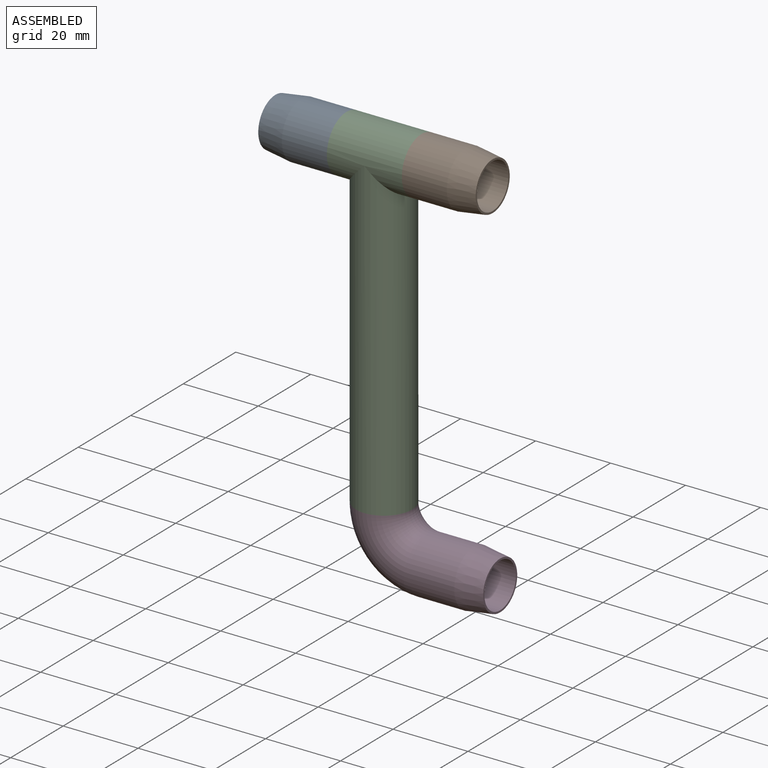
[diagram: assembled view]
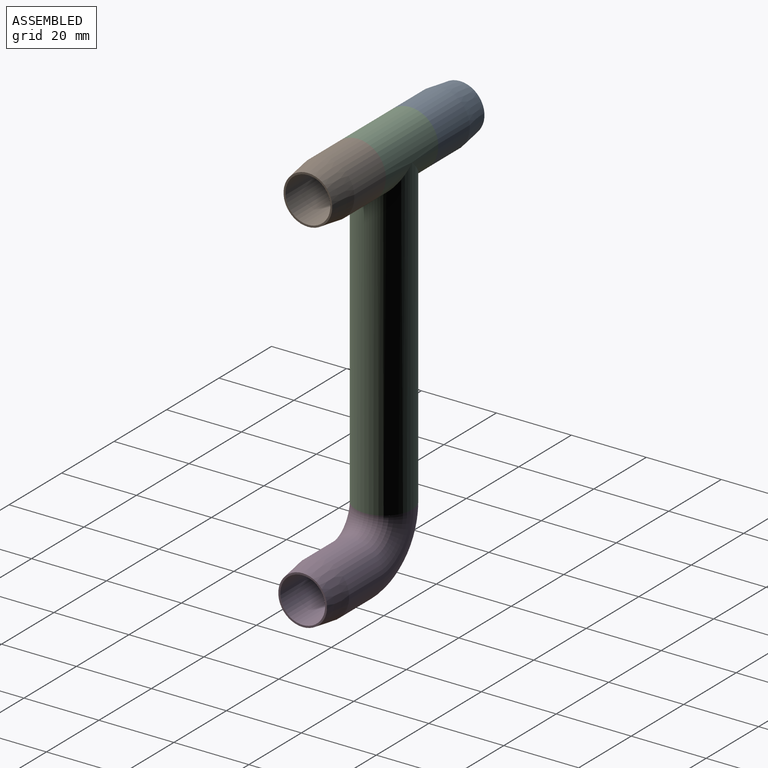
[diagram: assembled view, second angle]
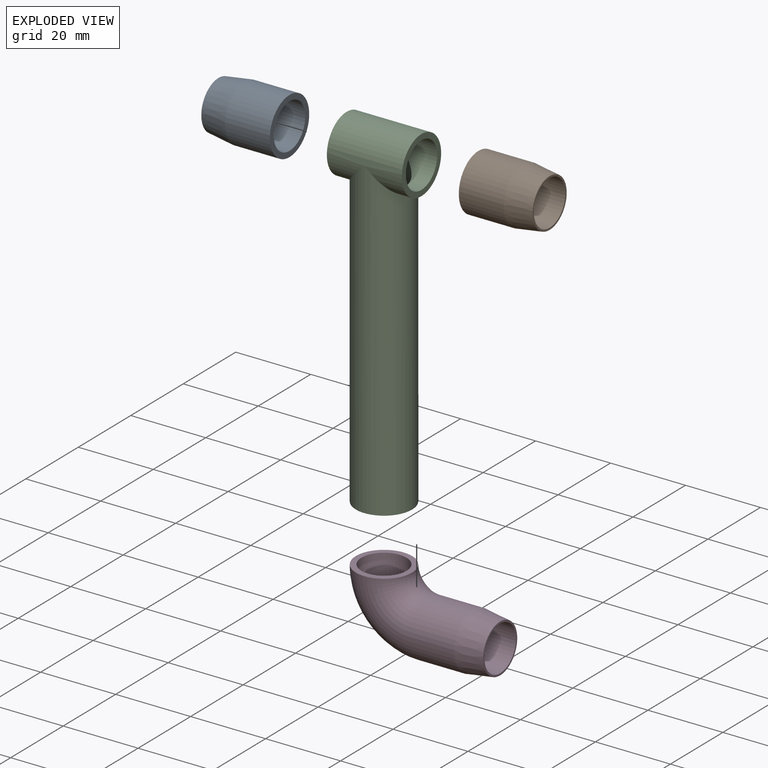
[diagram: exploded view]
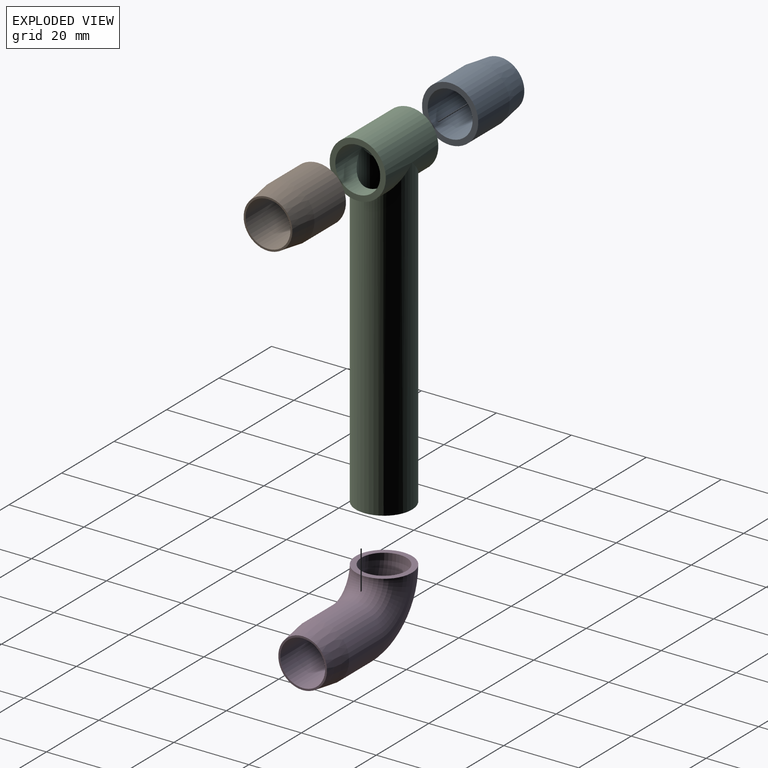
[diagram: exploded view, second angle]
ASSEMBLY  parts=4 mates=3
PART A: 5 faces, bbox 15x15x19 mm
  f0: cylinder r=6mm len=19mm, axis (0,0,-1), area 716.3mm2, adj f1,f4
  f1: plane 15x15mm, normal (0,0,-1), area 63.6mm2, adj f0,f2
  f2: cylinder r=7.5mm len=15mm, axis (0,0,-1), area 565.5mm2, adj f1,f3
  f3: cone r=6.5mm half-angle=8.1deg, axis (0,0,-1), area 311mm2, adj f2,f4
  f4: plane 13x13mm, normal (0,0,1), area 19.6mm2, adj f0,f3
PART B: same geometry as A
PART C: 9 faces, bbox 20x15x91.3 mm
  f0: cylinder r=6mm len=20mm, axis (-1,0,0), area 609.9mm2, adj f2,f3,f5,f7,f8
  f1: cylinder r=7.5mm len=20mm, axis (-1,0,0), area 741.6mm2, adj f2,f3,f4
  f2: plane 15x15mm, normal (1,0,0), area 63.6mm2, adj f0,f1
  f3: plane 15x15mm, normal (-1,0,0), area 63.6mm2, adj f0,f1
  f4: cylinder r=7.5mm len=83.75mm, axis (0,0,1), area 3745.8mm2, adj f1,f6
  f5: cylinder r=6mm len=83.75mm, axis (0,0,1), area 3028.8mm2, adj f0,f6
  f6: plane 15x15mm, normal (0,0,1), area 63.6mm2, adj f4,f5
  f7: cylinder r=6mm len=0.5mm, axis (0,0,-1), area 0.1mm2, adj f0
  f8: cylinder r=6mm len=0.5mm, axis (0,0,-1), area 0.1mm2, adj f0
PART D: 7 faces, bbox 21.1x15x40.1 mm
  f0: cylinder r=6mm len=19mm, axis (0,0,-1), area 716.3mm2, adj f3,f4
  f1: cylinder r=7.5mm len=15mm, axis (0,0,-1), area 565.5mm2, adj f2,f6
  f2: cone r=6.5mm half-angle=8.1deg, axis (0,0,-1), area 311mm2, adj f1,f3
  f3: plane 13x13mm, normal (0,0,1), area 19.6mm2, adj f0,f2
  f4: torus R=12mm, axis (0,-1,0), area 710.6mm2, adj f0,f5
  f5: plane 15x15mm, normal (1,0,0), area 63.6mm2, adj f4,f6
  f6: torus R=12mm, axis (0,-1,0), area 888.3mm2, adj f1,f5
PLACE A rot(axis=(0,-1,0),90deg) t=(-66.19,-8.88,-28.93)mm
PLACE B rot(axis=(0,1,0),90deg) t=(-22.19,-8.88,-28.93)mm
PLACE C rot(axis=(0,-1,0),180deg) t=(-44.19,-8.88,-28.93)mm
PLACE D rot(axis=(0.71,0,0.71),180deg) t=(-20.19,-8.88,-124.68)mm
MATE fastened C.f0 <-> A.f0  axis (-1,0,0) through (-54.19,-8.88,-28.93)mm
MATE fastened B.f0 <-> C.f0  axis (-1,0,0) through (-34.19,-8.88,-28.93)mm
MATE fastened D.f5 <-> C.f5  axis (0,0,1) through (-44.19,-8.88,-112.68)mm
